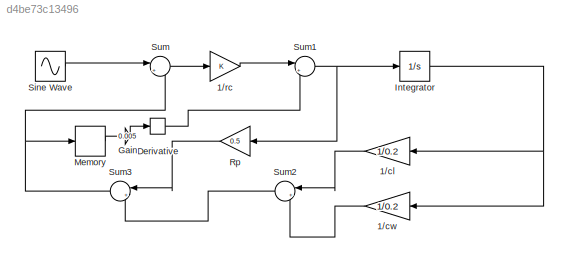
MODEL slx_d4be73c13496
KIND model
CONFIG AbsTol = auto
CONFIG EnableMultiTasking = off
CONFIG FixedStep = 1e-2
CONFIG MaxStep = auto
CONFIG MinStep = auto
CONFIG RelTol = 1e-3
CONFIG SampleTimeConstraint = Unconstrained
CONFIG SolverName = ode8
CONFIG StartTime = 0.0
CONFIG StopTime = 10.0
BLOCK [Gain] 1//cl
  Gain = 1/0.2
BLOCK [Gain] 1//cw
  Gain = 1/0.2
BLOCK [Gain] 1//rc
BLOCK [Derivative] Derivative
BLOCK [Gain] Gain
  Gain = 0.005
BLOCK [Integrator] Integrator
  Ports = [1, 1]
BLOCK [Memory] Memory
BLOCK [Gain] Rp
  Gain = 0.5
BLOCK [Sin] Sine Wave
  Ports = [0, 1]
  SampleTime = 0
BLOCK [Sum] Sum
  Inputs = |+-
  Ports = [2, 1]
BLOCK [Sum] Sum1
  Inputs = |+-
  Ports = [2, 1]
BLOCK [Sum] Sum2
  Inputs = |++
  Ports = [2, 1]
BLOCK [Sum] Sum3
  Inputs = |++
  Ports = [2, 1]
LINE 1//cl:1 -> Sum2:1
LINE 1//cw:1 -> Sum2:2
LINE 1//rc:1 -> Sum1:1
LINE Derivative:1 -> Sum1:2
LINE Gain:1 -> Derivative:1
NET Integrator:1 -> 1//cl:1, 1//cw:1
LINE Memory:1 -> Gain:1
LINE Rp:1 -> Sum3:1
LINE Sine Wave:1 -> Sum:1
NET Sum1:1 -> Integrator:1, Rp:1
LINE Sum2:1 -> Sum3:2
NET Sum3:1 -> Memory:1, Sum:2
LINE Sum:1 -> 1//rc:1
note: NET lines group one-source signal fan-out (src -> all destinations, sorted); 1:1 wires keep LINE
